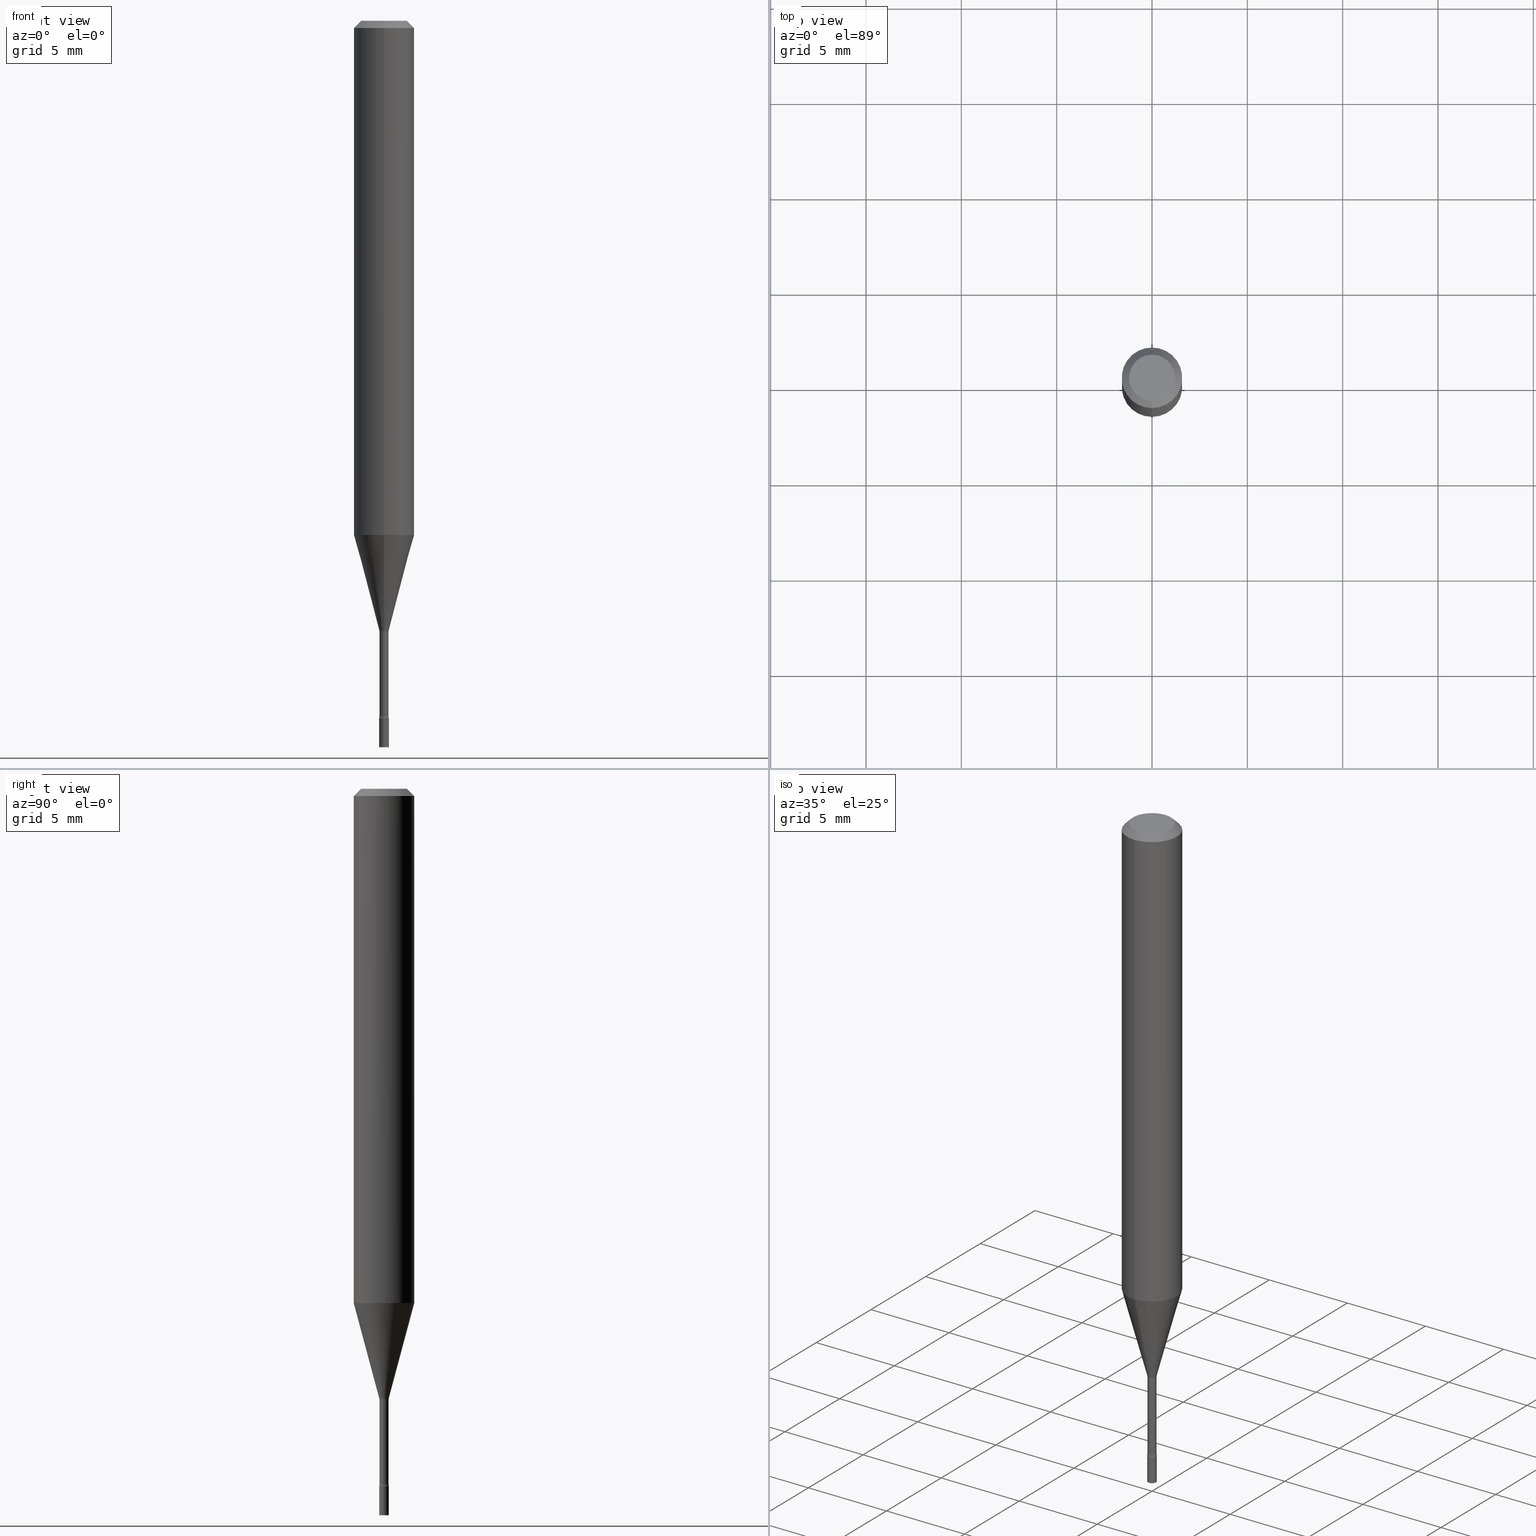
[diagram: canonical four-view strip — front | top / right | iso, engineering-drawing reading convention]
A machine part, canonical four-view strip (front | top / right | iso — engineering-drawing reading convention). The complete STEP part file that produces these views, byte-faithful:
ISO-10303-21;
HEADER;
FILE_DESCRIPTION (( 'STEP AP203' ),
    '1' );
FILE_NAME ('04296.STEP',
    '2024-03-08T22:56:14',
    ( '' ),
    ( '' ),
    'SwSTEP 2.0',
    'SolidWorks 2023',
    '' );
FILE_SCHEMA (( 'CONFIG_CONTROL_DESIGN' ));
ENDSEC;

DATA;
#1 = EDGE_CURVE ( 'NONE', #60, #321, #54, .T. ) ;
#2 = APPROVAL ( #84, 'UNSPECIFIED' ) ;
#3 = DIRECTION ( 'NONE',  ( 1.000000000000000000, 0.000000000000000000, 0.000000000000000000 ) ) ;
#4 = EDGE_LOOP ( 'NONE', ( #380, #246, #265, #96 ) ) ;
#5 = DIRECTION ( 'NONE',  ( -4.851104656540964275E-15, -0.7071067811865500152, -0.7071067811865450192 ) ) ;
#6 = APPROVAL_PERSON_ORGANIZATION ( #404, #333, #162 ) ;
#7 = CARTESIAN_POINT ( 'NONE',  ( 3.076468153828594531E-29, -4.392832492000444341E-15, -1.258092501787273276 ) ) ;
#8 = ADVANCED_FACE ( 'NONE', ( #90 ), #492, .T. ) ;
#9 = ADVANCED_FACE ( 'NONE', ( #245 ), #219, .T. ) ;
#10 =( LENGTH_UNIT ( ) NAMED_UNIT ( * ) SI_UNIT ( $, .METRE. ) );
#11 = FACE_OUTER_BOUND ( 'NONE', #93, .T. ) ;
#12 = EDGE_LOOP ( 'NONE', ( #509, #284, #67, #468 ) ) ;
#13 = DIRECTION ( 'NONE',  ( -6.982962677686265922E-15, -1.000000000000000000, 3.491660975452831644E-15 ) ) ;
#14 = DIMENSIONAL_EXPONENTS ( 1.000000000000000000, 0.000000000000000000, 0.000000000000000000, 0.000000000000000000, 0.000000000000000000, 0.000000000000000000, 0.000000000000000000 ) ;
#15 = CARTESIAN_POINT ( 'NONE',  ( 3.521475080906597305E-29, -5.027733127934130649E-15, -1.440000000000000169 ) ) ;
#16 = AXIS2_PLACEMENT_3D ( 'NONE', #480, #196, #238 ) ;
#17 = APPROVAL_DATE_TIME ( #136, #127 ) ;
#18 = FACE_OUTER_BOUND ( 'NONE', #21, .T. ) ;
#19 = EDGE_CURVE ( 'NONE', #281, #497, #378, .T. ) ;
#20 = EDGE_CURVE ( 'NONE', #30, #60, #419, .T. ) ;
#21 = EDGE_LOOP ( 'NONE', ( #401, #387 ) ) ;
#22 = ORIENTED_EDGE ( 'NONE', *, *, #58, .T. ) ;
#23 = AXIS2_PLACEMENT_3D ( 'NONE', #454, #287, #210 ) ;
#24 =( GEOMETRIC_REPRESENTATION_CONTEXT ( 3 ) GLOBAL_UNCERTAINTY_ASSIGNED_CONTEXT ( ( #277 ) ) GLOBAL_UNIT_ASSIGNED_CONTEXT ( ( #286, #124, #208 ) ) REPRESENTATION_CONTEXT ( 'NONE', 'WORKASPACE' ) );
#25 = CARTESIAN_POINT ( 'NONE',  ( -4.364351673553912750E-16, -0.06250000000000005551, -0.01499999999999981209 ) ) ;
#26 = ORIENTED_EDGE ( 'NONE', *, *, #227, .T. ) ;
#27 = AXIS2_PLACEMENT_3D ( 'NONE', #276, #317, #440 ) ;
#28 = ADVANCED_FACE ( 'NONE', ( #370 ), #121, .T. ) ;
#29 = DIRECTION ( 'NONE',  ( 1.000000000000000000, -6.982962677686265922E-15, 4.876176775795935793E-29 ) ) ;
#30 = VERTEX_POINT ( 'NONE', #86 ) ;
#31 = DIRECTION ( 'NONE',  ( -6.982962677686265922E-15, -1.000000000000000000, 4.370956789862821150E-15 ) ) ;
#32 = ORIENTED_EDGE ( 'NONE', *, *, #289, .F. ) ;
#33 = TOROIDAL_SURFACE ( 'NONE', #27, 0.02440000000000002237, 0.01500000000000003587 ) ;
#34 = AXIS2_PLACEMENT_3D ( 'NONE', #390, #354, #357 ) ;
#35 = PRODUCT_DEFINITION_FORMATION_WITH_SPECIFIED_SOURCE ( 'ANY', '', #191, .NOT_KNOWN. ) ;
#36 = DIRECTION ( 'NONE',  ( 2.445343366611038169E-29, -3.491660975452831644E-15, -1.000000000000000000 ) ) ;
#37 = ORIENTED_EDGE ( 'NONE', *, *, #467, .F. ) ;
#38 = CYLINDRICAL_SURFACE ( 'NONE', #382, 0.06250000000000000000 ) ;
#39 = CARTESIAN_POINT ( 'NONE',  ( 3.668015049916564189E-31, -5.237491463179258781E-17, -0.01500000000000003067 ) ) ;
#40 = ORIENTED_EDGE ( 'NONE', *, *, #104, .T. ) ;
#41 = ADVANCED_FACE ( 'NONE', ( #55 ), #226, .F. ) ;
#42 = EDGE_CURVE ( 'NONE', #217, #60, #413, .T. ) ;
#43 = FACE_OUTER_BOUND ( 'NONE', #400, .T. ) ;
#44 = DIRECTION ( 'NONE',  ( -1.000000000000000000, 6.982962677686265922E-15, -4.883557194083112340E-29 ) ) ;
#45 = TOROIDAL_SURFACE ( 'NONE', #324, 0.02440000000000002237, 0.01500000000000003587 ) ;
#46 = CARTESIAN_POINT ( 'NONE',  ( 0.000000000000000000, 0.000000000000000000, 0.000000000000000000 ) ) ;
#47 = ORIENTED_EDGE ( 'NONE', *, *, #365, .F. ) ;
#48 = ADVANCED_FACE ( 'NONE', ( #211 ), #452, .T. ) ;
#49 = CIRCLE ( 'NONE', #143, 0.01500000000000001853 ) ;
#50 = PERSON_AND_ORGANIZATION ( #503, #256 ) ;
#51 = CARTESIAN_POINT ( 'NONE',  ( 6.679101716144937079E-17, 0.009399999999999993430, -3.282161316925659617E-17 ) ) ;
#52 = APPROVAL_ROLE ( '' ) ;
#53 = AXIS2_PLACEMENT_3D ( 'NONE', #7, #409, #327 ) ;
#54 = CIRCLE ( 'NONE', #407, 0.009400000000000002104 ) ;
#55 = FACE_OUTER_BOUND ( 'NONE', #307, .T. ) ;
#56 = VECTOR ( 'NONE', #283, 39.37007874015748854 ) ;
#57 = CARTESIAN_POINT ( 'NONE',  ( 3.085961675355005207E-29, -4.406388117392771066E-15, -1.261974787463811198 ) ) ;
#58 = EDGE_CURVE ( 'NONE', #405, #443, #266, .T. ) ;
#59 = CARTESIAN_POINT ( 'NONE',  ( 4.364351673553919652E-16, 0.06249999999999995143, -0.01500000000000024751 ) ) ;
#60 = VERTEX_POINT ( 'NONE', #446 ) ;
#61 = AXIS2_PLACEMENT_3D ( 'NONE', #408, #406, #418 ) ;
#62 = DIRECTION ( 'NONE',  ( -2.445468806185136597E-29, 3.491481338843145583E-15, 1.000000000000000000 ) ) ;
#63 = ORIENTED_EDGE ( 'NONE', *, *, #168, .T. ) ;
#64 = AXIS2_PLACEMENT_3D ( 'NONE', #395, #156, #511 ) ;
#65 = EDGE_CURVE ( 'NONE', #281, #185, #520, .T. ) ;
#66 = DIRECTION ( 'NONE',  ( -2.445343366611038169E-29, 3.491660975452831250E-15, 1.000000000000000000 ) ) ;
#67 = ORIENTED_EDGE ( 'NONE', *, *, #444, .T. ) ;
#68 = ADVANCED_FACE ( 'NONE', ( #76 ), #33, .F. ) ;
#69 = CARTESIAN_POINT ( 'NONE',  ( 6.982962677689787249E-17, 0.009999999999994971245, -1.440000000000000169 ) ) ;
#70 = VERTEX_POINT ( 'NONE', #236 ) ;
#71 = CARTESIAN_POINT ( 'NONE',  ( 7.068357481363179518E-46, -1.009277810029187006E-31, -2.890537818890891102E-17 ) ) ;
#72 = ORIENTED_EDGE ( 'NONE', *, *, #232, .T. ) ;
#73 = DESIGN_CONTEXT ( 'detailed design', #315, 'design' ) ;
#74 = PLANE ( 'NONE',  #247 ) ;
#75 = CARTESIAN_POINT ( 'NONE',  ( 2.596534305995666904E-29, -3.707543746804889699E-15, -1.061828102118093087 ) ) ;
#76 = FACE_OUTER_BOUND ( 'NONE', #262, .T. ) ;
#77 = DIRECTION ( 'NONE',  ( -2.445343366611038169E-29, 3.491660975452831644E-15, 1.000000000000000000 ) ) ;
#78 = CIRCLE ( 'NONE', #279, 0.01000000000000000021 ) ;
#79 = DIRECTION ( 'NONE',  ( -6.982962677686266711E-15, -1.000000000000000000, 3.491660975452831644E-15 ) ) ;
#80 = LOCAL_TIME ( 17, 56, 14.00000000000000000, #448 ) ;
#81 = ORIENTED_EDGE ( 'NONE', *, *, #301, .F. ) ;
#82 = DATE_AND_TIME ( #248, #335 ) ;
#83 = APPROVAL_DATE_TIME ( #82, #2 ) ;
#84 = APPROVAL_STATUS ( 'not_yet_approved' ) ;
#85 = AXIS2_PLACEMENT_3D ( 'NONE', #146, #442, #103 ) ;
#86 = CARTESIAN_POINT ( 'NONE',  ( 2.572559502513342919E-16, 0.009911112605659593358, -1.258092501787273276 ) ) ;
#87 = PERSON_AND_ORGANIZATION_ROLE ( 'creator' ) ;
#88 = DIRECTION ( 'NONE',  ( -2.445343366611038169E-29, 3.491660975452831250E-15, 1.000000000000000000 ) ) ;
#89 = DIRECTION ( 'NONE',  ( 1.839019923739596371E-15, 0.2588190451025244032, 0.9659258262890673130 ) ) ;
#90 = FACE_OUTER_BOUND ( 'NONE', #144, .T. ) ;
#91 = APPROVAL_PERSON_ORGANIZATION ( #450, #2, #52 ) ;
#92 = VERTEX_POINT ( 'NONE', #403 ) ;
#93 = EDGE_LOOP ( 'NONE', ( #384, #435, #198, #32 ) ) ;
#94 = CARTESIAN_POINT ( 'NONE',  ( 4.440892098500625669E-16, 0.06250000000000000000, -2.182288109658019531E-16 ) ) ;
#95 = PLANE ( 'NONE',  #302 ) ;
#96 = ORIENTED_EDGE ( 'NONE', *, *, #65, .F. ) ;
#97 = AXIS2_PLACEMENT_3D ( 'NONE', #445, #441, #79 ) ;
#98 = CC_DESIGN_APPROVAL ( #333, ( #119 ) ) ;
#99 = DIRECTION ( 'NONE',  ( -2.445468806185136597E-29, 3.491481338843145583E-15, 1.000000000000000000 ) ) ;
#100 = ORIENTED_EDGE ( 'NONE', *, *, #232, .F. ) ;
#101 = CARTESIAN_POINT ( 'NONE',  ( -6.563984917022004891E-17, -0.009400000000004406567, -1.261974787463811198 ) ) ;
#102 = CIRCLE ( 'NONE', #430, 0.06250000000000000000 ) ;
#103 = DIRECTION ( 'NONE',  ( -6.982962677686265922E-15, -1.000000000000000000, 0.000000000000000000 ) ) ;
#104 = EDGE_CURVE ( 'NONE', #224, #495, #102, .T. ) ;
#105 = AXIS2_PLACEMENT_3D ( 'NONE', #482, #77, #514 ) ;
#106 = LINE ( 'NONE', #361, #334 ) ;
#107 = EDGE_CURVE ( 'NONE', #181, #224, #512, .T. ) ;
#108 = FACE_OUTER_BOUND ( 'NONE', #389, .T. ) ;
#109 = CARTESIAN_POINT ( 'NONE',  ( -6.920892941966671205E-17, -0.009911112605668377998, -1.258092501787273276 ) ) ;
#110 = ADVANCED_FACE ( 'NONE', ( #18 ), #253, .T. ) ;
#111 = AXIS2_PLACEMENT_3D ( 'NONE', #15, #369, #457 ) ;
#112 = DATE_AND_TIME ( #484, #486 ) ;
#113 = FACE_OUTER_BOUND ( 'NONE', #4, .T. ) ;
#114 = APPLICATION_PROTOCOL_DEFINITION ( 'international standard', 'config_control_design', 1994, #434 ) ;
#115 = ORIENTED_EDGE ( 'NONE', *, *, #325, .T. ) ;
#116 = DIRECTION ( 'NONE',  ( -2.445468806185136597E-29, 3.491481338843145583E-15, 1.000000000000000000 ) ) ;
#117 = APPROVAL_DATE_TIME ( #112, #333 ) ;
#118 = ORIENTED_EDGE ( 'NONE', *, *, #506, .F. ) ;
#119 = PRODUCT_DEFINITION ( 'UNKNOWN', '', #35, #73 ) ;
#120 = ADVANCED_FACE ( 'NONE', ( #323 ), #292, .T. ) ;
#121 = CYLINDRICAL_SURFACE ( 'NONE', #412, 0.009399999999999993430 ) ;
#122 = PERSON_AND_ORGANIZATION ( #503, #256 ) ;
#123 = CIRCLE ( 'NONE', #318, 0.009399999999999986491 ) ;
#124 =( NAMED_UNIT ( * ) PLANE_ANGLE_UNIT ( ) SI_UNIT ( $, .RADIAN. ) );
#125 = DIRECTION ( 'NONE',  ( -2.445343366611038169E-29, 3.491660975452831644E-15, 1.000000000000000000 ) ) ;
#126 = ADVANCED_FACE ( 'NONE', ( #11 ), #186, .F. ) ;
#127 = APPROVAL ( #385, 'UNSPECIFIED' ) ;
#128 = VECTOR ( 'NONE', #88, 39.37007874015748143 ) ;
#129 = ORIENTED_EDGE ( 'NONE', *, *, #200, .T. ) ;
#130 = CLOSED_SHELL ( 'NONE', ( #126, #28, #240, #423, #8, #48, #9, #414, #397, #147, #157, #68, #120, #41 ) ) ;
#131 = PERSON_AND_ORGANIZATION_ROLE ( 'classification_officer' ) ;
#132 = ADVANCED_FACE ( 'NONE', ( #113 ), #259, .T. ) ;
#133 = DIRECTION ( 'NONE',  ( -2.445468806185136597E-29, 3.491481338843145583E-15, 1.000000000000000000 ) ) ;
#134 = ORIENTED_EDGE ( 'NONE', *, *, #200, .F. ) ;
#135 = VECTOR ( 'NONE', #89, 39.37007874015748143 ) ;
#136 = DATE_AND_TIME ( #381, #392 ) ;
#137 = VERTEX_POINT ( 'NONE', #170 ) ;
#138 = DIRECTION ( 'NONE',  ( -2.445343366611038169E-29, 3.491660975452831644E-15, 1.000000000000000000 ) ) ;
#139 = ORIENTED_EDGE ( 'NONE', *, *, #325, .F. ) ;
#140 = ORIENTED_EDGE ( 'NONE', *, *, #274, .T. ) ;
#141 = EDGE_CURVE ( 'NONE', #30, #405, #469, .T. ) ;
#142 = CARTESIAN_POINT ( 'NONE',  ( -3.773273898774340269E-16, -0.04749999999999999362, 1.369485181451006022E-16 ) ) ;
#143 = AXIS2_PLACEMENT_3D ( 'NONE', #184, #44, #149 ) ;
#144 = EDGE_LOOP ( 'NONE', ( #364, #310, #428, #81 ) ) ;
#145 = CC_DESIGN_APPROVAL ( #127, ( #456 ) ) ;
#146 = CARTESIAN_POINT ( 'NONE',  ( 3.511024005780128815E-29, -5.013326828555175549E-15, -1.435799999999999965 ) ) ;
#147 = ADVANCED_FACE ( 'NONE', ( #311 ), #95, .F. ) ;
#148 = CC_DESIGN_DATE_AND_TIME_ASSIGNMENT ( #169, #305, ( #456 ) ) ;
#149 = DIRECTION ( 'NONE',  ( -6.982962677686269077E-15, -1.000000000000000000, 0.000000000000000000 ) ) ;
#150 = DIRECTION ( 'NONE',  ( -2.445468806185136877E-29, 3.491481338843145188E-15, 1.000000000000000000 ) ) ;
#151 = ORIENTED_EDGE ( 'NONE', *, *, #19, .F. ) ;
#152 = CARTESIAN_POINT ( 'NONE',  ( -4.364351673553657849E-16, -0.06250000000000371925, -1.061828102118092865 ) ) ;
#153 = AXIS2_PLACEMENT_3D ( 'NONE', #69, #66, #228 ) ;
#154 = CC_DESIGN_APPROVAL ( #2, ( #35 ) ) ;
#155 = CARTESIAN_POINT ( 'NONE',  ( 7.105427357604538322E-17, 0.009999999999994993796, -1.440000000000000169 ) ) ;
#156 = DIRECTION ( 'NONE',  ( -2.445343366611038169E-29, 3.491660975452831644E-15, 1.000000000000000000 ) ) ;
#157 = ADVANCED_FACE ( 'NONE', ( #474 ), #267, .F. ) ;
#158 = AXIS2_PLACEMENT_3D ( 'NONE', #205, #371, #250 ) ;
#159 = APPLICATION_PROTOCOL_DEFINITION ( 'international standard', 'config_control_design', 1994, #315 ) ;
#160 = DIRECTION ( 'NONE',  ( 1.000000000000000000, -6.982962677686235945E-15, 0.000000000000000000 ) ) ;
#161 = EDGE_CURVE ( 'NONE', #321, #60, #242, .T. ) ;
#162 = APPROVAL_ROLE ( '' ) ;
#163 = EDGE_LOOP ( 'NONE', ( #47, #304, #129, #470 ) ) ;
#164 = EDGE_LOOP ( 'NONE', ( #261, #134 ) ) ;
#165 = VECTOR ( 'NONE', #221, 39.37007874015748143 ) ;
#166 = ORIENTED_EDGE ( 'NONE', *, *, #301, .T. ) ;
#167 = CIRCLE ( 'NONE', #111, 0.01000000000000000021 ) ;
#168 = EDGE_CURVE ( 'NONE', #497, #281, #269, .T. ) ;
#169 = DATE_AND_TIME ( #340, #270 ) ;
#170 = CARTESIAN_POINT ( 'NONE',  ( -6.563984917021569785E-17, -0.009400000000004999842, -1.435799999999999965 ) ) ;
#171 = ORIENTED_EDGE ( 'NONE', *, *, #233, .T. ) ;
#172 = DIRECTION ( 'NONE',  ( -2.445468806185136597E-29, 3.491481338843145583E-15, 1.000000000000000000 ) ) ;
#173 = DIRECTION ( 'NONE',  ( -6.982962677686265922E-15, -1.000000000000000000, 3.491660975452831250E-15 ) ) ;
#174 = ORIENTED_EDGE ( 'NONE', *, *, #161, .F. ) ;
#175 = AXIS2_PLACEMENT_3D ( 'NONE', #493, #329, #451 ) ;
#176 = PERSON_AND_ORGANIZATION ( #503, #256 ) ;
#177 = DIRECTION ( 'NONE',  ( -6.982962677686265922E-15, -1.000000000000000000, 0.000000000000000000 ) ) ;
#178 = AXIS2_PLACEMENT_3D ( 'NONE', #275, #36, #188 ) ;
#179 = CC_DESIGN_PERSON_AND_ORGANIZATION_ASSIGNMENT ( #122, #322, ( #191 ) ) ;
#180 = CARTESIAN_POINT ( 'NONE',  ( 6.892264536876495998E-17, 0.009399999999994973141, -1.435799999999999965 ) ) ;
#181 = VERTEX_POINT ( 'NONE', #142 ) ;
#182 = PRODUCT_DEFINITION_SHAPE ( 'NONE', 'NONE',  #119 ) ;
#183 = CARTESIAN_POINT ( 'NONE',  ( 0.000000000000000000, 0.000000000000000000, 0.000000000000000000 ) ) ;
#184 = CARTESIAN_POINT ( 'NONE',  ( -1.703842893355140225E-16, -0.02440000000000440775, -1.261974787463811198 ) ) ;
#185 = VERTEX_POINT ( 'NONE', #462 ) ;
#186 = TOROIDAL_SURFACE ( 'NONE', #391, 0.02440000000000000155, 0.01500000000000002200 ) ;
#187 = VECTOR ( 'NONE', #366, 39.37007874015748143 ) ;
#188 = DIRECTION ( 'NONE',  ( 6.982962677686265922E-15, 1.000000000000000000, -3.483106191921935554E-15 ) ) ;
#189 = ORIENTED_EDGE ( 'NONE', *, *, #227, .F. ) ;
#190 = ADVANCED_FACE ( 'NONE', ( #303 ), #421, .T. ) ;
#191 = PRODUCT ( '04296', '04296', '', ( #199 ) ) ;
#192 = DIRECTION ( 'NONE',  ( -6.982962677686265922E-15, -1.000000000000000000, 3.491660975452831250E-15 ) ) ;
#193 = DIRECTION ( 'NONE',  ( -2.445343366611038169E-29, 3.491660975452831644E-15, 1.000000000000000000 ) ) ;
#194 = DIRECTION ( 'NONE',  ( -2.445343366611038169E-29, 3.491660975452831644E-15, 1.000000000000000000 ) ) ;
#195 = ORIENTED_EDGE ( 'NONE', *, *, #107, .T. ) ;
#196 = DIRECTION ( 'NONE',  ( 2.445343366611038169E-29, -3.491660975452831644E-15, -1.000000000000000000 ) ) ;
#197 = CARTESIAN_POINT ( 'NONE',  ( 4.440892098500887472E-16, 0.06249999999999995837, -0.01500000000000024751 ) ) ;
#198 = ORIENTED_EDGE ( 'NONE', *, *, #1, .T. ) ;
#199 = MECHANICAL_CONTEXT ( 'NONE', #434, 'mechanical' ) ;
#200 = EDGE_CURVE ( 'NONE', #355, #70, #78, .T. ) ;
#201 = CARTESIAN_POINT ( 'NONE',  ( 0.000000000000000000, 0.000000000000000000, 0.000000000000000000 ) ) ;
#202 = AXIS2_PLACEMENT_3D ( 'NONE', #183, #62, #309 ) ;
#203 = CARTESIAN_POINT ( 'NONE',  ( 3.668203209277704895E-29, -5.237222008264718177E-15, -1.500000000000000222 ) ) ;
#204 = PERSON_AND_ORGANIZATION_ROLE ( 'creator' ) ;
#205 = CARTESIAN_POINT ( 'NONE',  ( 0.000000000000000000, 0.000000000000000000, 0.000000000000000000 ) ) ;
#206 = ORIENTED_EDGE ( 'NONE', *, *, #260, .T. ) ;
#207 = DIRECTION ( 'NONE',  ( -6.982962677686265922E-15, -1.000000000000000000, 3.491660975452831644E-15 ) ) ;
#208 =( NAMED_UNIT ( * ) SI_UNIT ( $, .STERADIAN. ) SOLID_ANGLE_UNIT ( ) );
#209 = CIRCLE ( 'NONE', #294, 0.01500000000000003240 ) ;
#210 = DIRECTION ( 'NONE',  ( 1.000000000000000000, -6.982962677686265922E-15, 4.876176775795935793E-29 ) ) ;
#211 = FACE_OUTER_BOUND ( 'NONE', #272, .T. ) ;
#212 = ADVANCED_BREP_SHAPE_REPRESENTATION ( '04296', ( #424, #422, #223 ), #24 ) ;
#213 = DIRECTION ( 'NONE',  ( -6.982962677686265922E-15, -1.000000000000000000, 0.000000000000000000 ) ) ;
#214 = DIRECTION ( 'NONE',  ( -2.445343366611038169E-29, 3.491660975452831644E-15, 1.000000000000000000 ) ) ;
#215 = PERSON_AND_ORGANIZATION ( #503, #256 ) ;
#216 = DIRECTION ( 'NONE',  ( 1.000000000000000000, -6.982962677686235945E-15, 0.000000000000000000 ) ) ;
#217 = VERTEX_POINT ( 'NONE', #180 ) ;
#218 = EDGE_LOOP ( 'NONE', ( #475, #63, #426, #118 ) ) ;
#219 = CONICAL_SURFACE ( 'NONE', #61, 0.009911112605663985678, 0.2617993877991496854 ) ;
#220 = SECURITY_CLASSIFICATION_LEVEL ( 'unclassified' ) ;
#221 = DIRECTION ( 'NONE',  ( -2.445343366611038169E-29, 3.491660975452831250E-15, 1.000000000000000000 ) ) ;
#222 = VECTOR ( 'NONE', #5, 39.37007874015748143 ) ;
#223 = AXIS2_PLACEMENT_3D ( 'NONE', #46, #288, #3 ) ;
#224 = VERTEX_POINT ( 'NONE', #25 ) ;
#225 = DIRECTION ( 'NONE',  ( -2.445343366611038169E-29, 3.491660975452831644E-15, 1.000000000000000000 ) ) ;
#226 = TOROIDAL_SURFACE ( 'NONE', #330, 0.02440000000000000155, 0.01500000000000002200 ) ;
#227 = EDGE_CURVE ( 'NONE', #519, #495, #376, .T. ) ;
#228 = DIRECTION ( 'NONE',  ( -6.982962677686265922E-15, -1.000000000000000000, 3.491660975452831250E-15 ) ) ;
#229 = ORIENTED_EDGE ( 'NONE', *, *, #348, .T. ) ;
#230 = CC_DESIGN_PERSON_AND_ORGANIZATION_ASSIGNMENT ( #215, #131, ( #456 ) ) ;
#231 = CARTESIAN_POINT ( 'NONE',  ( -4.364351673553916201E-16, -0.06250000000000000000, 2.182288109658019531E-16 ) ) ;
#232 = EDGE_CURVE ( 'NONE', #258, #30, #455, .T. ) ;
#233 = EDGE_CURVE ( 'NONE', #137, #217, #123, .T. ) ;
#234 = AXIS2_PLACEMENT_3D ( 'NONE', #71, #316, #320 ) ;
#235 = DIRECTION ( 'NONE',  ( -6.982962677686269866E-15, -1.000000000000000000, 0.000000000000000000 ) ) ;
#236 = CARTESIAN_POINT ( 'NONE',  ( -6.982962677682758991E-17, -0.01000000000000504825, -1.440000000000000169 ) ) ;
#237 = ORIENTED_EDGE ( 'NONE', *, *, #168, .F. ) ;
#238 = DIRECTION ( 'NONE',  ( 6.982962677686265922E-15, 1.000000000000000000, -3.483106191921935554E-15 ) ) ;
#239 = EDGE_CURVE ( 'NONE', #185, #92, #516, .T. ) ;
#240 = ADVANCED_FACE ( 'NONE', ( #339 ), #45, .F. ) ;
#241 = LINE ( 'NONE', #231, #254 ) ;
#242 = CIRCLE ( 'NONE', #439, 0.009400000000000002104 ) ;
#243 = DIRECTION ( 'NONE',  ( -1.000000000000000000, 6.982962677686265922E-15, -4.876176775795935793E-29 ) ) ;
#244 = DIRECTION ( 'NONE',  ( -6.982962677686265922E-15, -1.000000000000000000, 4.370956789862821150E-15 ) ) ;
#245 = FACE_OUTER_BOUND ( 'NONE', #349, .T. ) ;
#246 = ORIENTED_EDGE ( 'NONE', *, *, #513, .T. ) ;
#247 = AXIS2_PLACEMENT_3D ( 'NONE', #282, #483, #243 ) ;
#248 = CALENDAR_DATE ( 2024, 8, 3 ) ;
#249 = DATE_AND_TIME ( #290, #80 ) ;
#250 = DIRECTION ( 'NONE',  ( -6.982962677686265922E-15, -1.000000000000000000, 3.491660975452831644E-15 ) ) ;
#251 = CC_DESIGN_PERSON_AND_ORGANIZATION_ASSIGNMENT ( #411, #204, ( #35 ) ) ;
#252 = EDGE_CURVE ( 'NONE', #405, #495, #271, .T. ) ;
#253 = PLANE ( 'NONE',  #23 ) ;
#254 = VECTOR ( 'NONE', #510, 39.37007874015748143 ) ;
#255 = DIRECTION ( 'NONE',  ( -2.445343366611038169E-29, 3.491660975452831644E-15, 1.000000000000000000 ) ) ;
#256 = ORGANIZATION ( 'UNSPECIFIED', 'UNSPECIFIED', '' ) ;
#257 = ORIENTED_EDGE ( 'NONE', *, *, #141, .T. ) ;
#258 = VERTEX_POINT ( 'NONE', #436 ) ;
#259 = CYLINDRICAL_SURFACE ( 'NONE', #202, 0.01000000000000000021 ) ;
#260 = EDGE_CURVE ( 'NONE', #137, #70, #209, .T. ) ;
#261 = ORIENTED_EDGE ( 'NONE', *, *, #274, .F. ) ;
#262 = EDGE_LOOP ( 'NONE', ( #477, #432, #206, #140 ) ) ;
#263 = CARTESIAN_POINT ( 'NONE',  ( 3.511204111920619566E-29, -5.013068906310988441E-15, -1.435799999999999965 ) ) ;
#264 = EDGE_LOOP ( 'NONE', ( #171, #273, #174, #502 ) ) ;
#265 = ORIENTED_EDGE ( 'NONE', *, *, #239, .F. ) ;
#266 = CIRCLE ( 'NONE', #417, 0.06250000000000000000 ) ;
#267 = PLANE ( 'NONE',  #153 ) ;
#268 = EDGE_LOOP ( 'NONE', ( #346, #115 ) ) ;
#269 = CIRCLE ( 'NONE', #473, 0.01000000000000000021 ) ;
#270 = LOCAL_TIME ( 17, 56, 14.00000000000000000, #415 ) ;
#271 = LINE ( 'NONE', #94, #165 ) ;
#272 = EDGE_LOOP ( 'NONE', ( #72, #257, #37, #352 ) ) ;
#273 = ORIENTED_EDGE ( 'NONE', *, *, #42, .T. ) ;
#274 = EDGE_CURVE ( 'NONE', #70, #355, #374, .T. ) ;
#275 = CARTESIAN_POINT ( 'NONE',  ( 3.668015049916564189E-31, -5.237491463179258781E-17, -0.01500000000000003067 ) ) ;
#276 = CARTESIAN_POINT ( 'NONE',  ( 3.511204111920619566E-29, -5.013068906310988441E-15, -1.435799999999999965 ) ) ;
#277 = UNCERTAINTY_MEASURE_WITH_UNIT (LENGTH_MEASURE( 1.000000000000000082E-05 ), #286, 'distance_accuracy_value', 'NONE');
#278 = FACE_OUTER_BOUND ( 'NONE', #379, .T. ) ;
#279 = AXIS2_PLACEMENT_3D ( 'NONE', #383, #225, #213 ) ;
#280 = LINE ( 'NONE', #109, #56 ) ;
#281 = VERTEX_POINT ( 'NONE', #314 ) ;
#282 = CARTESIAN_POINT ( 'NONE',  ( 6.982962677689933928E-17, 0.009999999999994763078, -1.500000000000000222 ) ) ;
#283 = DIRECTION ( 'NONE',  ( -1.807323732225326195E-15, -0.2588190451025176309, 0.9659258262890690894 ) ) ;
#284 = ORIENTED_EDGE ( 'NONE', *, *, #365, .T. ) ;
#285 = CONICAL_SURFACE ( 'NONE', #16, 0.06250000000000000000, 0.7853981633974483900 ) ;
#286 =( CONVERSION_BASED_UNIT ( 'INCH', #295 ) LENGTH_UNIT ( ) NAMED_UNIT ( #14 ) );
#287 = DIRECTION ( 'NONE',  ( -2.438088387897960049E-29, 3.491481338843145188E-15, 1.000000000000000000 ) ) ;
#288 = DIRECTION ( 'NONE',  ( 0.000000000000000000, 0.000000000000000000, 1.000000000000000000 ) ) ;
#289 = EDGE_CURVE ( 'NONE', #258, #321, #49, .T. ) ;
#290 = CALENDAR_DATE ( 2024, 8, 3 ) ;
#291 = AXIS2_PLACEMENT_3D ( 'NONE', #328, #214, #173 ) ;
#292 = CYLINDRICAL_SURFACE ( 'NONE', #158, 0.009399999999999993430 ) ;
#293 = VECTOR ( 'NONE', #150, 39.37007874015748143 ) ;
#294 = AXIS2_PLACEMENT_3D ( 'NONE', #476, #479, #235 ) ;
#295 = LENGTH_MEASURE_WITH_UNIT ( LENGTH_MEASURE( 0.02539999999999999897 ), #10 );
#296 = COORDINATED_UNIVERSAL_TIME_OFFSET ( 5, 0, .BEHIND. ) ;
#297 = ORIENTED_EDGE ( 'NONE', *, *, #478, .T. ) ;
#298 = DIRECTION ( 'NONE',  ( 6.982962677686265922E-15, 1.000000000000000000, -3.491660975452831250E-15 ) ) ;
#299 = DIRECTION ( 'NONE',  ( -6.982962677686265922E-15, -1.000000000000000000, 0.000000000000000000 ) ) ;
#300 = CARTESIAN_POINT ( 'NONE',  ( 2.596534305995666904E-29, -3.707543746804889699E-15, -1.061828102118093087 ) ) ;
#301 = EDGE_CURVE ( 'NONE', #443, #224, #241, .T. ) ;
#302 = AXIS2_PLACEMENT_3D ( 'NONE', #505, #306, #298 ) ;
#303 = FACE_OUTER_BOUND ( 'NONE', #218, .T. ) ;
#304 = ORIENTED_EDGE ( 'NONE', *, *, #332, .T. ) ;
#305 = DATE_TIME_ROLE ( 'classification_date' ) ;
#306 = DIRECTION ( 'NONE',  ( 2.445343366611038169E-29, -3.491660975452831250E-15, -1.000000000000000000 ) ) ;
#307 = EDGE_LOOP ( 'NONE', ( #429, #100, #337, #363 ) ) ;
#308 = SHAPE_DEFINITION_REPRESENTATION ( #182, #212 ) ;
#309 = DIRECTION ( 'NONE',  ( 1.000000000000000000, -6.982962677686265922E-15, 4.876176775795935793E-29 ) ) ;
#310 = ORIENTED_EDGE ( 'NONE', *, *, #252, .T. ) ;
#311 = FACE_OUTER_BOUND ( 'NONE', #268, .T. ) ;
#312 = CIRCLE ( 'NONE', #97, 0.04749999999999999362 ) ;
#313 = ORIENTED_EDGE ( 'NONE', *, *, #58, .F. ) ;
#314 = CARTESIAN_POINT ( 'NONE',  ( 0.01000000000000000021, -5.307051635041580686E-15, -1.500000000000000222 ) ) ;
#315 = APPLICATION_CONTEXT ( 'configuration controlled 3d designs of mechanical parts and assemblies' ) ;
#316 = DIRECTION ( 'NONE',  ( -2.445343366611038169E-29, 3.491660975452831644E-15, 1.000000000000000000 ) ) ;
#317 = DIRECTION ( 'NONE',  ( -2.445343366611038169E-29, 3.491660975452831644E-15, 1.000000000000000000 ) ) ;
#318 = AXIS2_PLACEMENT_3D ( 'NONE', #494, #466, #342 ) ;
#319 = DIRECTION ( 'NONE',  ( -2.445343366611038169E-29, 3.491660975452831644E-15, 1.000000000000000000 ) ) ;
#320 = DIRECTION ( 'NONE',  ( -6.982962677686266711E-15, -1.000000000000000000, 3.491660975452831644E-15 ) ) ;
#321 = VERTEX_POINT ( 'NONE', #101 ) ;
#322 = PERSON_AND_ORGANIZATION_ROLE ( 'design_owner' ) ;
#323 = FACE_OUTER_BOUND ( 'NONE', #12, .T. ) ;
#324 = AXIS2_PLACEMENT_3D ( 'NONE', #263, #344, #427 ) ;
#325 = EDGE_CURVE ( 'NONE', #181, #519, #465, .T. ) ;
#326 = CARTESIAN_POINT ( 'NONE',  ( -0.01000000000000000021, -5.061423294523413937E-15, -1.500000000000000222 ) ) ;
#327 = DIRECTION ( 'NONE',  ( -6.982962677686265922E-15, -1.000000000000000000, 0.000000000000000000 ) ) ;
#328 = CARTESIAN_POINT ( 'NONE',  ( 0.000000000000000000, 0.000000000000000000, 0.000000000000000000 ) ) ;
#329 = DIRECTION ( 'NONE',  ( 1.000000000000000000, -7.105427357601001070E-15, 4.926317708456072905E-29 ) ) ;
#330 = AXIS2_PLACEMENT_3D ( 'NONE', #367, #125, #207 ) ;
#331 = PERSON_AND_ORGANIZATION ( #503, #256 ) ;
#332 = EDGE_CURVE ( 'NONE', #217, #355, #420, .T. ) ;
#333 = APPROVAL ( #488, 'UNSPECIFIED' ) ;
#334 = VECTOR ( 'NONE', #351, 39.37007874015748143 ) ;
#335 = LOCAL_TIME ( 17, 56, 14.00000000000000000, #459 ) ;
#336 = DIRECTION ( 'NONE',  ( -2.445343366611038169E-29, 3.491660975452831644E-15, 1.000000000000000000 ) ) ;
#337 = ORIENTED_EDGE ( 'NONE', *, *, #289, .T. ) ;
#338 = DIRECTION ( 'NONE',  ( 4.937700262164548042E-15, 0.7071067811865451302, -0.7071067811865499042 ) ) ;
#339 = FACE_OUTER_BOUND ( 'NONE', #163, .T. ) ;
#340 = CALENDAR_DATE ( 2024, 8, 3 ) ;
#341 = CIRCLE ( 'NONE', #105, 0.06250000000000000000 ) ;
#342 = DIRECTION ( 'NONE',  ( -6.982962677686265922E-15, -1.000000000000000000, 0.000000000000000000 ) ) ;
#343 = ORIENTED_EDGE ( 'NONE', *, *, #107, .F. ) ;
#344 = DIRECTION ( 'NONE',  ( -2.445343366611038169E-29, 3.491660975452831644E-15, 1.000000000000000000 ) ) ;
#345 = EDGE_LOOP ( 'NONE', ( #498, #22, #166, #377 ) ) ;
#346 = ORIENTED_EDGE ( 'NONE', *, *, #461, .T. ) ;
#347 = DIRECTION ( 'NONE',  ( 1.000000000000000000, -6.982962677686235945E-15, 0.000000000000000000 ) ) ;
#348 = EDGE_CURVE ( 'NONE', #495, #224, #341, .T. ) ;
#349 = EDGE_LOOP ( 'NONE', ( #481, #297, #360, #313 ) ) ;
#350 = AXIS2_PLACEMENT_3D ( 'NONE', #203, #116, #160 ) ;
#351 = DIRECTION ( 'NONE',  ( -2.445343366611038169E-29, 3.491660975452831250E-15, 1.000000000000000000 ) ) ;
#352 = ORIENTED_EDGE ( 'NONE', *, *, #458, .F. ) ;
#353 = CIRCLE ( 'NONE', #472, 0.06250000000000000000 ) ;
#354 = DIRECTION ( 'NONE',  ( 1.000000000000000000, -7.105427357601001070E-15, 4.926317708456072905E-29 ) ) ;
#355 = VERTEX_POINT ( 'NONE', #155 ) ;
#356 = CC_DESIGN_PERSON_AND_ORGANIZATION_ASSIGNMENT ( #50, #87, ( #119 ) ) ;
#357 = DIRECTION ( 'NONE',  ( 7.105427357601003436E-15, 1.000000000000000000, 0.000000000000000000 ) ) ;
#358 = DIRECTION ( 'NONE',  ( -6.982962677686265922E-15, -1.000000000000000000, 3.483106191921935554E-15 ) ) ;
#359 = CARTESIAN_POINT ( 'NONE',  ( 3.076468153828594531E-29, -4.392832492000444341E-15, -1.258092501787273276 ) ) ;
#360 = ORIENTED_EDGE ( 'NONE', *, *, #458, .T. ) ;
#361 = CARTESIAN_POINT ( 'NONE',  ( -6.563984917025085146E-17, -0.009399999999999993430, 3.282161316925659617E-17 ) ) ;
#362 = CARTESIAN_POINT ( 'NONE',  ( 3.840629472727447874E-16, 0.04749999999999999362, -1.947592745229183872E-16 ) ) ;
#363 = ORIENTED_EDGE ( 'NONE', *, *, #161, .T. ) ;
#364 = ORIENTED_EDGE ( 'NONE', *, *, #467, .T. ) ;
#365 = EDGE_CURVE ( 'NONE', #217, #137, #490, .T. ) ;
#366 = DIRECTION ( 'NONE',  ( -2.445468806185136877E-29, 3.491481338843145188E-15, 1.000000000000000000 ) ) ;
#367 = CARTESIAN_POINT ( 'NONE',  ( 3.086119976934868225E-29, -4.406161420520441844E-15, -1.261974787463811198 ) ) ;
#368 = AXIS2_PLACEMENT_3D ( 'NONE', #431, #99, #29 ) ;
#369 = DIRECTION ( 'NONE',  ( -2.445468806185136597E-29, 3.491481338843145583E-15, 1.000000000000000000 ) ) ;
#370 = FACE_OUTER_BOUND ( 'NONE', #264, .T. ) ;
#371 = DIRECTION ( 'NONE',  ( -2.445343366611038169E-29, 3.491660975452831644E-15, 1.000000000000000000 ) ) ;
#372 = CARTESIAN_POINT ( 'NONE',  ( 3.085961675355005207E-29, -4.406388117392771066E-15, -1.261974787463811198 ) ) ;
#373 = CARTESIAN_POINT ( 'NONE',  ( -0.01000000000000000021, 7.105427357601002007E-17, -4.918935090254906272E-31 ) ) ;
#374 = CIRCLE ( 'NONE', #64, 0.01000000000000000021 ) ;
#375 = DIRECTION ( 'NONE',  ( -6.982962677686265922E-15, -1.000000000000000000, 3.491660975452831644E-15 ) ) ;
#376 = LINE ( 'NONE', #59, #485 ) ;
#377 = ORIENTED_EDGE ( 'NONE', *, *, #348, .F. ) ;
#378 = CIRCLE ( 'NONE', #350, 0.01000000000000000021 ) ;
#379 = EDGE_LOOP ( 'NONE', ( #151, #237 ) ) ;
#380 = ORIENTED_EDGE ( 'NONE', *, *, #19, .T. ) ;
#381 = CALENDAR_DATE ( 2024, 8, 3 ) ;
#382 = AXIS2_PLACEMENT_3D ( 'NONE', #518, #438, #192 ) ;
#383 = CARTESIAN_POINT ( 'NONE',  ( 3.521294447919895456E-29, -5.027991804652077978E-15, -1.440000000000000169 ) ) ;
#384 = ORIENTED_EDGE ( 'NONE', *, *, #478, .F. ) ;
#385 = APPROVAL_STATUS ( 'not_yet_approved' ) ;
#386 = DIRECTION ( 'NONE',  ( -2.445343366611038169E-29, 3.491660975452831644E-15, 1.000000000000000000 ) ) ;
#387 = ORIENTED_EDGE ( 'NONE', *, *, #506, .T. ) ;
#388 = CARTESIAN_POINT ( 'NONE',  ( 3.076468153828594531E-29, -4.392832492000444341E-15, -1.258092501787273276 ) ) ;
#389 = EDGE_LOOP ( 'NONE', ( #139, #195, #40, #189 ) ) ;
#390 = CARTESIAN_POINT ( 'NONE',  ( 1.733724275254997086E-16, 0.02439999999999501248, -1.435799999999999965 ) ) ;
#391 = AXIS2_PLACEMENT_3D ( 'NONE', #449, #138, #375 ) ;
#392 = LOCAL_TIME ( 17, 56, 14.00000000000000000, #504 ) ;
#393 = FACE_OUTER_BOUND ( 'NONE', #345, .T. ) ;
#394 = CARTESIAN_POINT ( 'NONE',  ( 0.01000000000000000021, -6.982962677686265724E-17, 4.876176775795935968E-31 ) ) ;
#395 = CARTESIAN_POINT ( 'NONE',  ( 3.521294447919895456E-29, -5.027991804652077978E-15, -1.440000000000000169 ) ) ;
#396 = CARTESIAN_POINT ( 'NONE',  ( -4.287811248607203282E-16, -0.06250000000000005551, -0.01499999999999981209 ) ) ;
#397 = ADVANCED_FACE ( 'NONE', ( #43 ), #507, .T. ) ;
#398 = CARTESIAN_POINT ( 'NONE',  ( 4.440892098500884514E-16, 0.06249999999999629463, -1.061828102118093309 ) ) ;
#399 = AXIS2_PLACEMENT_3D ( 'NONE', #359, #319, #508 ) ;
#400 = EDGE_LOOP ( 'NONE', ( #343, #464, #26, #229 ) ) ;
#401 = ORIENTED_EDGE ( 'NONE', *, *, #239, .T. ) ;
#402 = ADVANCED_FACE ( 'NONE', ( #278 ), #74, .T. ) ;
#403 = CARTESIAN_POINT ( 'NONE',  ( -0.01000000000000000021, -5.061423294523413937E-15, -1.440000000000000169 ) ) ;
#404 = PERSON_AND_ORGANIZATION ( #503, #256 ) ;
#405 = VERTEX_POINT ( 'NONE', #398 ) ;
#406 = DIRECTION ( 'NONE',  ( -2.445343366611038169E-29, 3.491660975452831644E-15, 1.000000000000000000 ) ) ;
#407 = AXIS2_PLACEMENT_3D ( 'NONE', #372, #336, #299 ) ;
#408 = CARTESIAN_POINT ( 'NONE',  ( 3.076468153828594531E-29, -4.392832492000444341E-15, -1.258092501787273276 ) ) ;
#409 = DIRECTION ( 'NONE',  ( -2.445343366611038169E-29, 3.491660975452831644E-15, 1.000000000000000000 ) ) ;
#410 = AXIS2_PLACEMENT_3D ( 'NONE', #500, #172, #347 ) ;
#411 = PERSON_AND_ORGANIZATION ( #503, #256 ) ;
#412 = AXIS2_PLACEMENT_3D ( 'NONE', #201, #496, #13 ) ;
#413 = LINE ( 'NONE', #51, #128 ) ;
#414 = ADVANCED_FACE ( 'NONE', ( #393 ), #38, .T. ) ;
#415 = COORDINATED_UNIVERSAL_TIME_OFFSET ( 5, 0, .BEHIND. ) ;
#416 = CLOSED_SHELL ( 'NONE', ( #132, #110, #190, #402 ) ) ;
#417 = AXIS2_PLACEMENT_3D ( 'NONE', #300, #463, #244 ) ;
#418 = DIRECTION ( 'NONE',  ( -6.982962677686265922E-15, -1.000000000000000000, 0.000000000000000000 ) ) ;
#419 = CIRCLE ( 'NONE', #175, 0.01500000000000001853 ) ;
#420 = CIRCLE ( 'NONE', #34, 0.01500000000000003240 ) ;
#421 = CYLINDRICAL_SURFACE ( 'NONE', #368, 0.01000000000000000021 ) ;
#422 = MANIFOLD_SOLID_BREP ( 'Body-Move/Copy2[2]', #130 ) ;
#423 = ADVANCED_FACE ( 'NONE', ( #108 ), #285, .T. ) ;
#424 = MANIFOLD_SOLID_BREP ( 'Body-Move/Copy2[1]', #416 ) ;
#425 = DIRECTION ( 'NONE',  ( -6.982962677686265922E-15, -1.000000000000000000, 0.000000000000000000 ) ) ;
#426 = ORIENTED_EDGE ( 'NONE', *, *, #65, .T. ) ;
#427 = DIRECTION ( 'NONE',  ( -6.982962677686265922E-15, -1.000000000000000000, 3.491660975452831644E-15 ) ) ;
#428 = ORIENTED_EDGE ( 'NONE', *, *, #104, .F. ) ;
#429 = ORIENTED_EDGE ( 'NONE', *, *, #20, .F. ) ;
#430 = AXIS2_PLACEMENT_3D ( 'NONE', #39, #193, #358 ) ;
#431 = CARTESIAN_POINT ( 'NONE',  ( 0.000000000000000000, 0.000000000000000000, 0.000000000000000000 ) ) ;
#432 = ORIENTED_EDGE ( 'NONE', *, *, #233, .F. ) ;
#433 = CARTESIAN_POINT ( 'NONE',  ( 7.042269065257978733E-17, 0.009911112605659593358, -1.258092501787273276 ) ) ;
#434 = APPLICATION_CONTEXT ( 'configuration controlled 3d designs of mechanical parts and assemblies' ) ;
#435 = ORIENTED_EDGE ( 'NONE', *, *, #20, .T. ) ;
#436 = CARTESIAN_POINT ( 'NONE',  ( -6.920892941966671205E-17, -0.009911112605668377998, -1.258092501787273276 ) ) ;
#437 = PRODUCT_RELATED_PRODUCT_CATEGORY ( 'detail', '', ( #191 ) ) ;
#438 = DIRECTION ( 'NONE',  ( -2.445343366611038169E-29, 3.491660975452831644E-15, 1.000000000000000000 ) ) ;
#439 = AXIS2_PLACEMENT_3D ( 'NONE', #57, #255, #425 ) ;
#440 = DIRECTION ( 'NONE',  ( -6.982962677686265922E-15, -1.000000000000000000, 3.491660975452831644E-15 ) ) ;
#441 = DIRECTION ( 'NONE',  ( -2.445343366611038169E-29, 3.491660975452831644E-15, 1.000000000000000000 ) ) ;
#442 = DIRECTION ( 'NONE',  ( -2.445343366611038169E-29, 3.491660975452831644E-15, 1.000000000000000000 ) ) ;
#443 = VERTEX_POINT ( 'NONE', #152 ) ;
#444 = EDGE_CURVE ( 'NONE', #137, #321, #106, .T. ) ;
#445 = CARTESIAN_POINT ( 'NONE',  ( 7.068357481363179518E-46, -1.009277810029187006E-31, -2.890537818890891102E-17 ) ) ;
#446 = CARTESIAN_POINT ( 'NONE',  ( 6.679101716148456138E-17, 0.009399999999995595906, -1.261974787463811198 ) ) ;
#447 = CIRCLE ( 'NONE', #399, 0.009911112605663985678 ) ;
#448 = COORDINATED_UNIVERSAL_TIME_OFFSET ( 5, 0, .BEHIND. ) ;
#449 = CARTESIAN_POINT ( 'NONE',  ( 3.086119976934868225E-29, -4.406161420520441844E-15, -1.261974787463811198 ) ) ;
#450 = PERSON_AND_ORGANIZATION ( #503, #256 ) ;
#451 = DIRECTION ( 'NONE',  ( 7.105427357601005014E-15, 1.000000000000000000, 0.000000000000000000 ) ) ;
#452 = CONICAL_SURFACE ( 'NONE', #53, 0.009911112605663985678, 0.2617993877991496854 ) ;
#453 = DATE_TIME_ROLE ( 'creation_date' ) ;
#454 = CARTESIAN_POINT ( 'NONE',  ( 3.521475080906597305E-29, -5.027733127934130649E-15, -1.440000000000000169 ) ) ;
#455 = CIRCLE ( 'NONE', #499, 0.009911112605663985678 ) ;
#456 = SECURITY_CLASSIFICATION ( '', '', #220 ) ;
#457 = DIRECTION ( 'NONE',  ( 1.000000000000000000, -6.982962677686235945E-15, 0.000000000000000000 ) ) ;
#458 = EDGE_CURVE ( 'NONE', #258, #443, #280, .T. ) ;
#459 = COORDINATED_UNIVERSAL_TIME_OFFSET ( 5, 0, .BEHIND. ) ;
#460 = CC_DESIGN_DATE_AND_TIME_ASSIGNMENT ( #249, #453, ( #119 ) ) ;
#461 = EDGE_CURVE ( 'NONE', #519, #181, #312, .T. ) ;
#462 = CARTESIAN_POINT ( 'NONE',  ( 0.01000000000000000021, -5.097562754710993158E-15, -1.440000000000000169 ) ) ;
#463 = DIRECTION ( 'NONE',  ( -2.445343366611038169E-29, 3.491660975452831644E-15, 1.000000000000000000 ) ) ;
#464 = ORIENTED_EDGE ( 'NONE', *, *, #461, .F. ) ;
#465 = CIRCLE ( 'NONE', #234, 0.04749999999999999362 ) ;
#466 = DIRECTION ( 'NONE',  ( -2.445343366611038169E-29, 3.491660975452831644E-15, 1.000000000000000000 ) ) ;
#467 = EDGE_CURVE ( 'NONE', #443, #405, #353, .T. ) ;
#468 = ORIENTED_EDGE ( 'NONE', *, *, #1, .F. ) ;
#469 = LINE ( 'NONE', #433, #135 ) ;
#470 = ORIENTED_EDGE ( 'NONE', *, *, #260, .F. ) ;
#471 = APPROVAL_ROLE ( '' ) ;
#472 = AXIS2_PLACEMENT_3D ( 'NONE', #75, #194, #31 ) ;
#473 = AXIS2_PLACEMENT_3D ( 'NONE', #501, #133, #216 ) ;
#474 = FACE_OUTER_BOUND ( 'NONE', #164, .T. ) ;
#475 = ORIENTED_EDGE ( 'NONE', *, *, #513, .F. ) ;
#476 = CARTESIAN_POINT ( 'NONE',  ( -1.703842893355099302E-16, -0.02440000000000503225, -1.435799999999999965 ) ) ;
#477 = ORIENTED_EDGE ( 'NONE', *, *, #332, .F. ) ;
#478 = EDGE_CURVE ( 'NONE', #30, #258, #447, .T. ) ;
#479 = DIRECTION ( 'NONE',  ( -1.000000000000000000, 6.982962677686265922E-15, -4.883557194083112340E-29 ) ) ;
#480 = CARTESIAN_POINT ( 'NONE',  ( 3.668015049916564189E-31, -5.237491463179258781E-17, -0.01500000000000003067 ) ) ;
#481 = ORIENTED_EDGE ( 'NONE', *, *, #141, .F. ) ;
#482 = CARTESIAN_POINT ( 'NONE',  ( 3.668015049916564189E-31, -5.237491463179258781E-17, -0.01500000000000003067 ) ) ;
#483 = DIRECTION ( 'NONE',  ( 2.438088387897960049E-29, -3.491481338843145188E-15, -1.000000000000000000 ) ) ;
#484 = CALENDAR_DATE ( 2024, 8, 3 ) ;
#485 = VECTOR ( 'NONE', #338, 39.37007874015748143 ) ;
#486 = LOCAL_TIME ( 17, 56, 14.00000000000000000, #296 ) ;
#487 = LINE ( 'NONE', #373, #187 ) ;
#488 = APPROVAL_STATUS ( 'not_yet_approved' ) ;
#489 = PERSON_AND_ORGANIZATION_ROLE ( 'design_supplier' ) ;
#490 = CIRCLE ( 'NONE', #85, 0.009399999999999986491 ) ;
#491 = APPROVAL_PERSON_ORGANIZATION ( #176, #127, #471 ) ;
#492 = CYLINDRICAL_SURFACE ( 'NONE', #291, 0.06250000000000000000 ) ;
#493 = CARTESIAN_POINT ( 'NONE',  ( 1.733724275254952959E-16, 0.02439999999999559535, -1.261974787463811198 ) ) ;
#494 = CARTESIAN_POINT ( 'NONE',  ( 3.511024005780128815E-29, -5.013326828555175549E-15, -1.435799999999999965 ) ) ;
#495 = VERTEX_POINT ( 'NONE', #197 ) ;
#496 = DIRECTION ( 'NONE',  ( -2.445343366611038169E-29, 3.491660975452831644E-15, 1.000000000000000000 ) ) ;
#497 = VERTEX_POINT ( 'NONE', #326 ) ;
#498 = ORIENTED_EDGE ( 'NONE', *, *, #252, .F. ) ;
#499 = AXIS2_PLACEMENT_3D ( 'NONE', #388, #386, #177 ) ;
#500 = CARTESIAN_POINT ( 'NONE',  ( 3.521475080906597305E-29, -5.027733127934130649E-15, -1.440000000000000169 ) ) ;
#501 = CARTESIAN_POINT ( 'NONE',  ( 3.668203209277704895E-29, -5.237222008264718177E-15, -1.500000000000000222 ) ) ;
#502 = ORIENTED_EDGE ( 'NONE', *, *, #444, .F. ) ;
#503 = PERSON ( 'UNSPECIFIED', 'UNSPECIFIED', 'UNSPECIFIED', ('UNSPECIFIED'), ('UNSPECIFIED'), ('UNSPECIFIED') ) ;
#504 = COORDINATED_UNIVERSAL_TIME_OFFSET ( 5, 0, .BEHIND. ) ;
#505 = CARTESIAN_POINT ( 'NONE',  ( 3.316907271900976096E-16, 0.04749999999999999362, -1.803065854284639718E-16 ) ) ;
#506 = EDGE_CURVE ( 'NONE', #92, #185, #167, .T. ) ;
#507 = CONICAL_SURFACE ( 'NONE', #178, 0.06250000000000000000, 0.7853981633974483900 ) ;
#508 = DIRECTION ( 'NONE',  ( -6.982962677686265922E-15, -1.000000000000000000, 0.000000000000000000 ) ) ;
#509 = ORIENTED_EDGE ( 'NONE', *, *, #42, .F. ) ;
#510 = DIRECTION ( 'NONE',  ( -2.445343366611038169E-29, 3.491660975452831250E-15, 1.000000000000000000 ) ) ;
#511 = DIRECTION ( 'NONE',  ( -6.982962677686265922E-15, -1.000000000000000000, 0.000000000000000000 ) ) ;
#512 = LINE ( 'NONE', #396, #222 ) ;
#513 = EDGE_CURVE ( 'NONE', #497, #92, #487, .T. ) ;
#514 = DIRECTION ( 'NONE',  ( -6.982962677686265922E-15, -1.000000000000000000, 3.483106191921935554E-15 ) ) ;
#515 = CC_DESIGN_PERSON_AND_ORGANIZATION_ASSIGNMENT ( #331, #489, ( #35 ) ) ;
#516 = CIRCLE ( 'NONE', #410, 0.01000000000000000021 ) ;
#517 = CC_DESIGN_SECURITY_CLASSIFICATION ( #456, ( #35 ) ) ;
#518 = CARTESIAN_POINT ( 'NONE',  ( 0.000000000000000000, 0.000000000000000000, 0.000000000000000000 ) ) ;
#519 = VERTEX_POINT ( 'NONE', #362 ) ;
#520 = LINE ( 'NONE', #394, #293 ) ;
ENDSEC;
END-ISO-10303-21;
